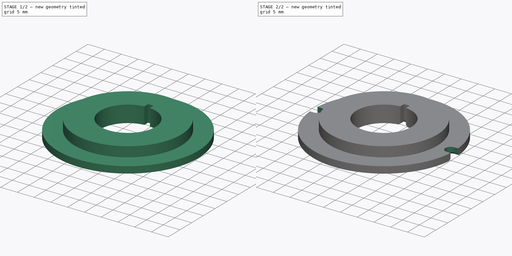
[diagram: build sequence overview — one tinted view per stage of 2, left to right]
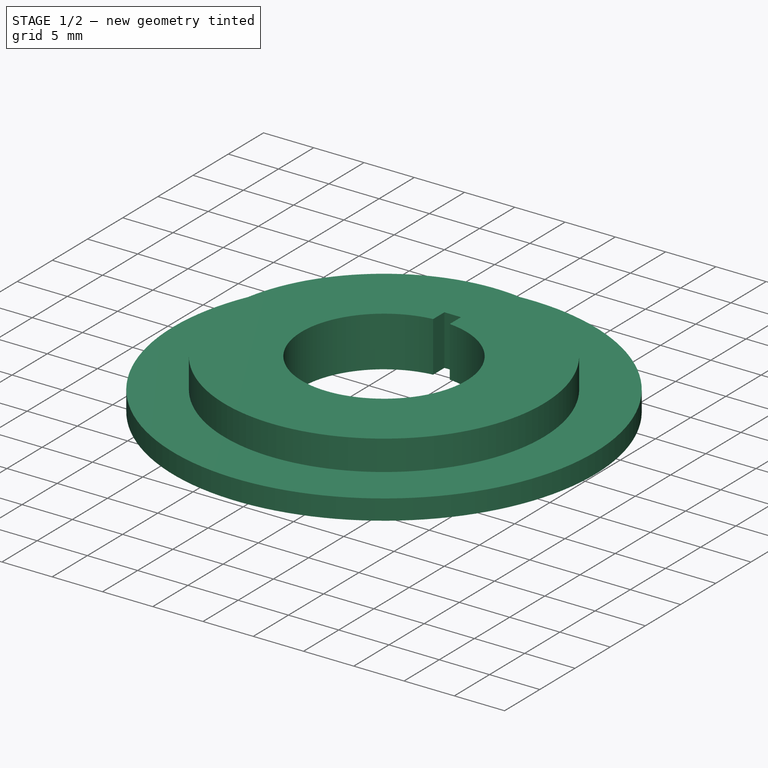
[diagram: stage 1 of 2 — iso view after this stage's code; geometry added in this stage tinted green]
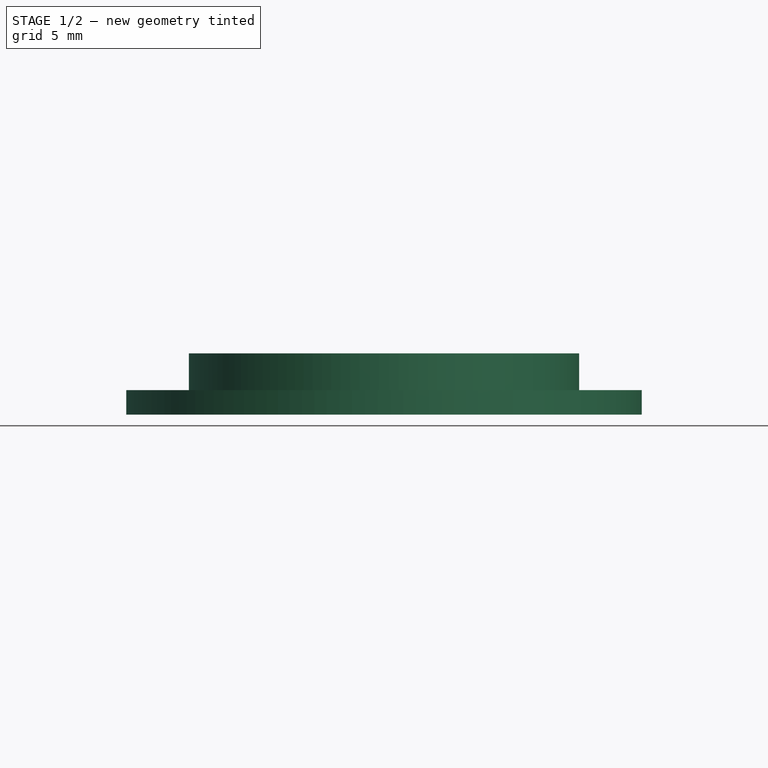
[diagram: stage 1 of 2 — front view after this stage's code; geometry added in this stage tinted green]
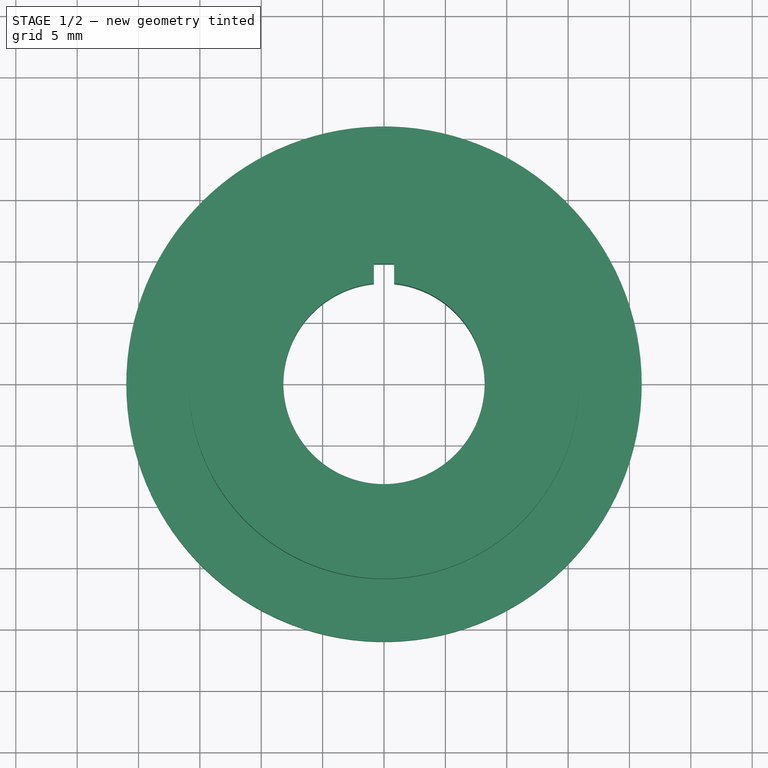
[diagram: stage 1 of 2 — top view after this stage's code; geometry added in this stage tinted green]
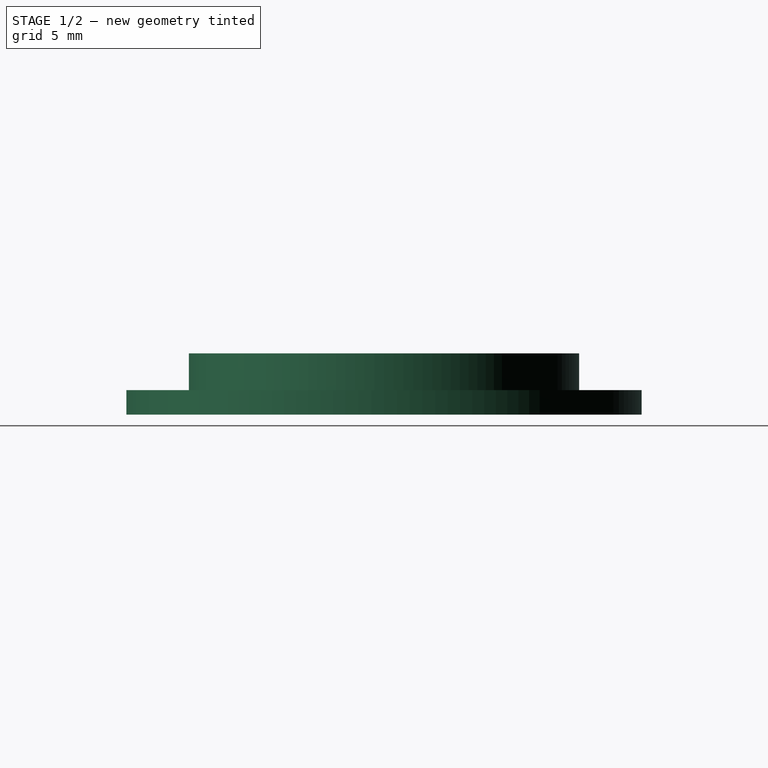
[diagram: stage 1 of 2 — right view after this stage's code; geometry added in this stage tinted green]
FCSTD DOCUMENT  (FreeCAD 0.15R4671 (Git))
Label: Adapter Not-Aus
License: All rights reserved
LicenseURL: http://en.wikipedia.org/wiki/All_rights_reserved
objects: Sketcher::SketchObject×3, PartDesign::Pad×2, PartDesign::Pocket×1, PartDesign::Chamfer×1
note: 10 computed .brp shape members not serialized (recipe doc carries the construction recipe); baked Part::Feature solids carry a one-line shape summary decoded from their .brp

FEATURE [Sketcher::SketchObject] Sketch
  sketch-geometry (5):
    g0: Circle CenterX=0 CenterY=0 CenterZ=0 NormalX=0 NormalY=0 NormalZ=1 Radius=15.9
    g1: LineSegment StartX=0.825 StartY=8.15839 StartZ=0 EndX=0.825 EndY=9.75839 EndZ=0
    g2: LineSegment StartX=0.825 StartY=9.75839 StartZ=0 EndX=-0.825 EndY=9.75839 EndZ=0
    g3: LineSegment StartX=-0.825 StartY=9.75839 StartZ=0 EndX=-0.825 EndY=8.15839 EndZ=0
    g4: ArcOfCircle CenterX=0 CenterY=0 CenterZ=0 NormalX=0 NormalY=0 NormalZ=1 Radius=8.2 StartAngle=1.67158 EndAngle=7.7532
  constraints (13):
    c: Coincident(g1,g2)
    c: Coincident(g2,g3)
    c: Horizontal(g2)
    c: Vertical(g1)
    c: Vertical(g3)
    c: Coincident(g4,g-1)
    c: Symmetric(g2,g1,g-2)
    c: Coincident(g3,g4)
    c: Coincident(g1,g4)
    c: DistanceX(g2) = -1.65
    c: DistanceY(g1) = 1.6
    c: Radius(g4) = 8.2
    c: Radius(g0) = 15.9
FEATURE [PartDesign::Pad] Pad
  Length = 5
  Length2 = 100
  Sketch = -> Sketch
  Type = 0
FEATURE [Sketcher::SketchObject] Sketch001
  ExternalGeometry = -> [Pad]
  Placement = pos=(0,0,0) rot=(1,0,0;3.14159rad)
  Support = -> Pad [Face6]
  sketch-geometry (2):
    g0: Circle CenterX=0 CenterY=0 CenterZ=0 NormalX=0 NormalY=0 NormalZ=1 Radius=15.9
    g1: Circle CenterX=0 CenterY=0 CenterZ=0 NormalX=0 NormalY=0 NormalZ=1 Radius=21
  constraints (4):
    c: Equal(g0,g-3)
    c: Coincident(g0,g-1)
    c: Coincident(g1,g-1)
    c: Radius(g1) = 21
FEATURE [PartDesign::Pad] Pad001
  Length = 2
  Length2 = 100
  Reversed = true
  Sketch = -> Sketch001
  Type = 0
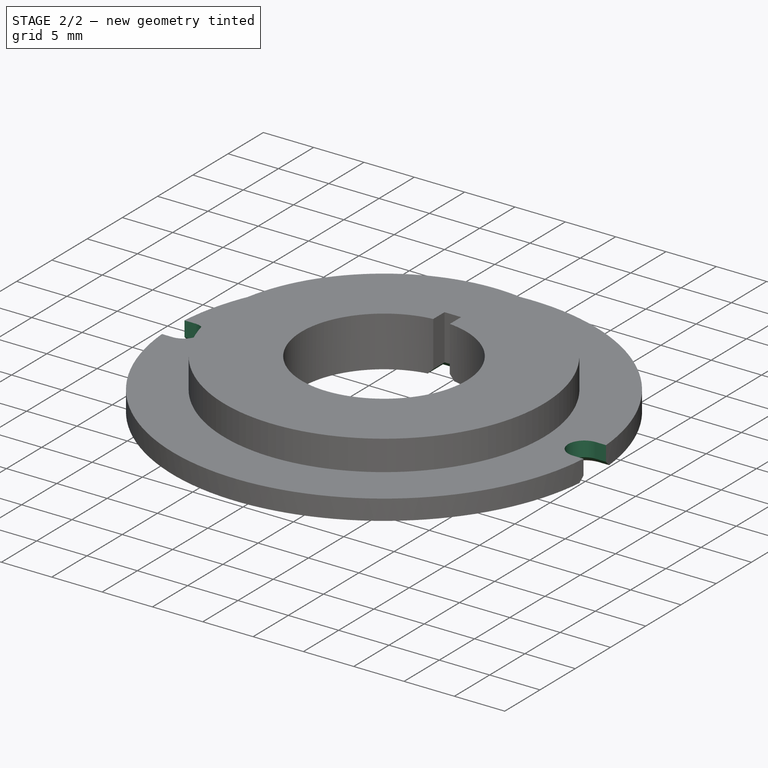
[diagram: stage 2 of 2 — iso view after this stage's code; geometry added in this stage tinted green]
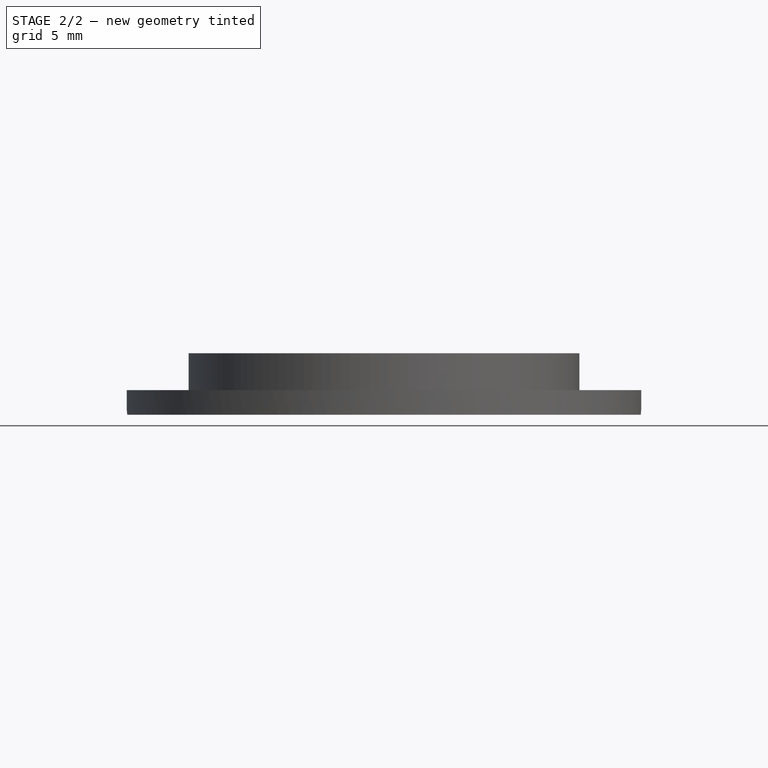
[diagram: stage 2 of 2 — front view after this stage's code; geometry added in this stage tinted green]
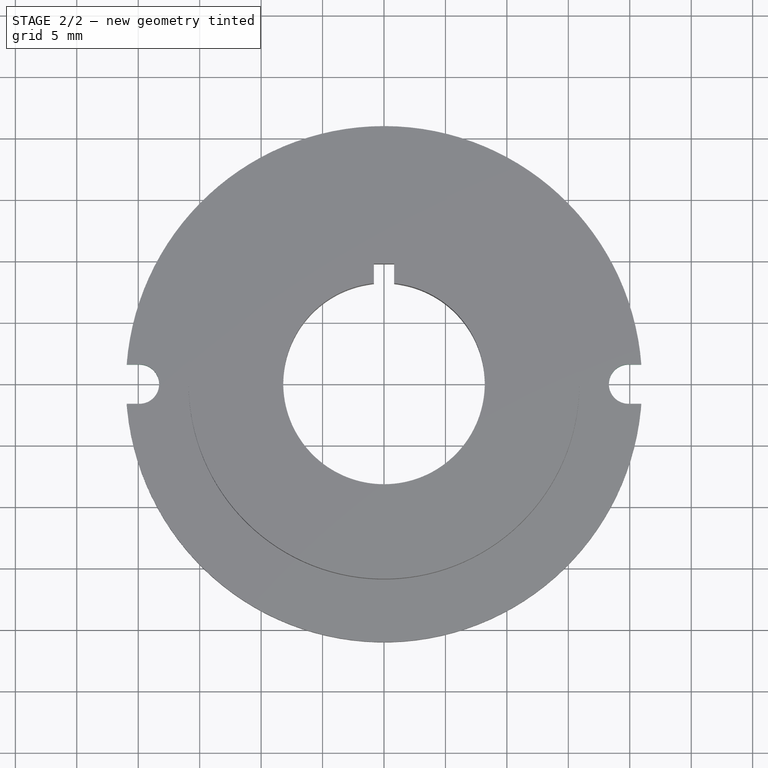
[diagram: stage 2 of 2 — top view after this stage's code; geometry added in this stage tinted green]
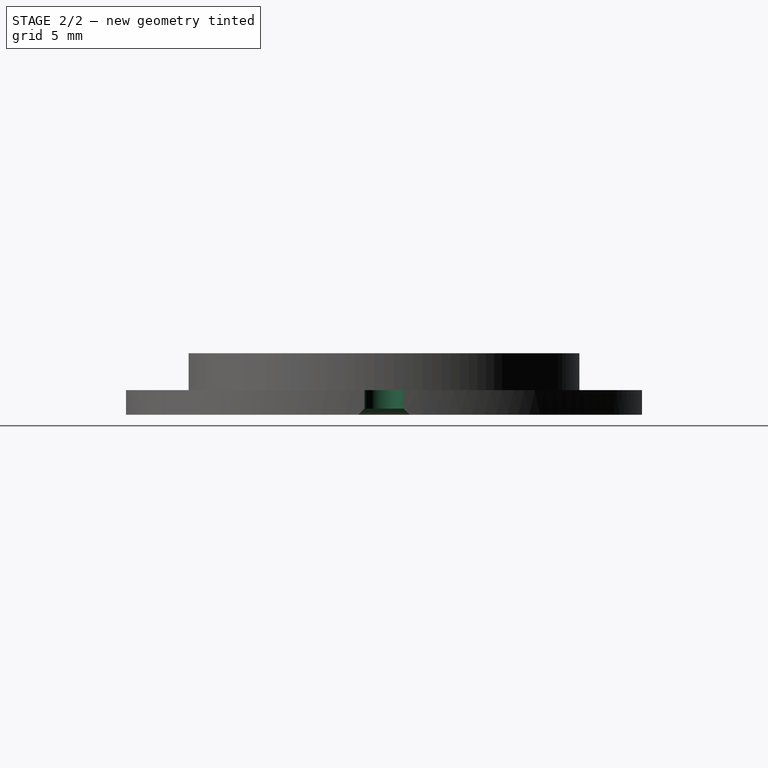
[diagram: stage 2 of 2 — right view after this stage's code; geometry added in this stage tinted green]
FEATURE [Sketcher::SketchObject] Sketch002
  ExternalGeometry = -> [Pad001]
  Placement = pos=(0,0,2) rot=(0,0,1;0rad)
  Support = -> Pad001 [Face10]
  sketch-geometry (9):
    g0: ArcOfCircle CenterX=-19.9 CenterY=0 CenterZ=0 NormalX=0 NormalY=0 NormalZ=1 Radius=1.6 StartAngle=4.71239 EndAngle=7.85398
    g1: LineSegment StartX=-21.9 StartY=-1.6 StartZ=0 EndX=-19.9 EndY=-1.6 EndZ=0
    g2: LineSegment StartX=-21.9 StartY=1.6 StartZ=0 EndX=-19.9 EndY=1.6 EndZ=0
    g3: LineSegment StartX=-21.9 StartY=1.6 StartZ=0 EndX=-21.9 EndY=-1.6 EndZ=0
    g4: ArcOfCircle CenterX=19.9 CenterY=0 CenterZ=0 NormalX=0 NormalY=0 NormalZ=1 Radius=1.6 StartAngle=1.5708 EndAngle=4.71239
    g5: LineSegment StartX=19.9 StartY=-1.6 StartZ=0 EndX=21.9 EndY=-1.6 EndZ=0
    g6: LineSegment StartX=19.9 StartY=1.6 StartZ=0 EndX=21.9 EndY=1.6 EndZ=0
    g7: LineSegment StartX=21.9 StartY=1.6 StartZ=0 EndX=21.9 EndY=-1.6 EndZ=0
    g8: LineSegment [constr] StartX=-15.9 StartY=1.6 StartZ=0 EndX=-15.9 EndY=-1.6 EndZ=0
  constraints (25):
    c: Tangent(g1,g0) = -1.5708
    c: Tangent(g2,g0) = 1.5708
    c: Horizontal(g1)
    c: Coincident(g3,g2)
    c: Coincident(g3,g1)
    c: Vertical(g3)
    c: Symmetric(g1,g2,g-1)
    c: Radius(g0) = 1.6
    c: Horizontal(g2)
    c: DistanceX(g1) = 2
    c: Tangent(g4,g6) = 1.5708
    c: Tangent(g4,g5) = -1.5708
    c: Horizontal(g5)
    c: Horizontal(g6)
    c: Equal(g5,g1)
    c: Coincident(g7,g6)
    c: Coincident(g7,g5)
    c: Vertical(g7)
    c: PointOnObject(g4,g-1)
    c: Equal(g3,g7)
    c: Symmetric(g4,g0,g-2)
    c: Symmetric(g8,g8,g-1)
    c: PointOnObject(g8,g2)
    c: Tangent(g8,g-3)
    c: DistanceX(g8,g0) = -4
FEATURE [PartDesign::Pocket] Pocket
  Length = 5
  Sketch = -> Sketch002
  Type = 0
FEATURE [PartDesign::Chamfer] Chamfer
  Base = -> Pocket [Edge3,Edge9,Edge12,Edge17,Edge21]
  Size = 0.5
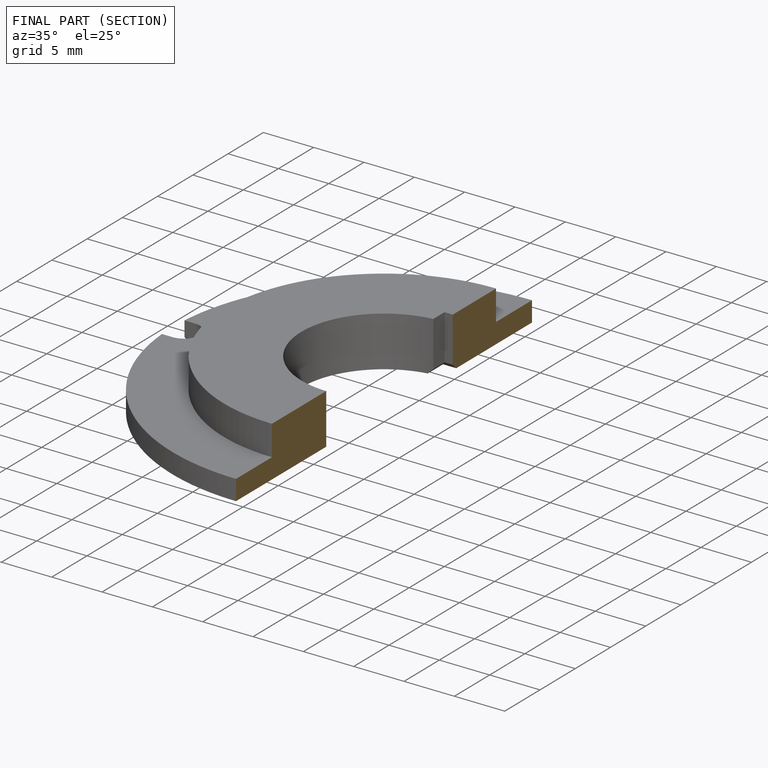
[diagram: finished part — half-section view (interior)]
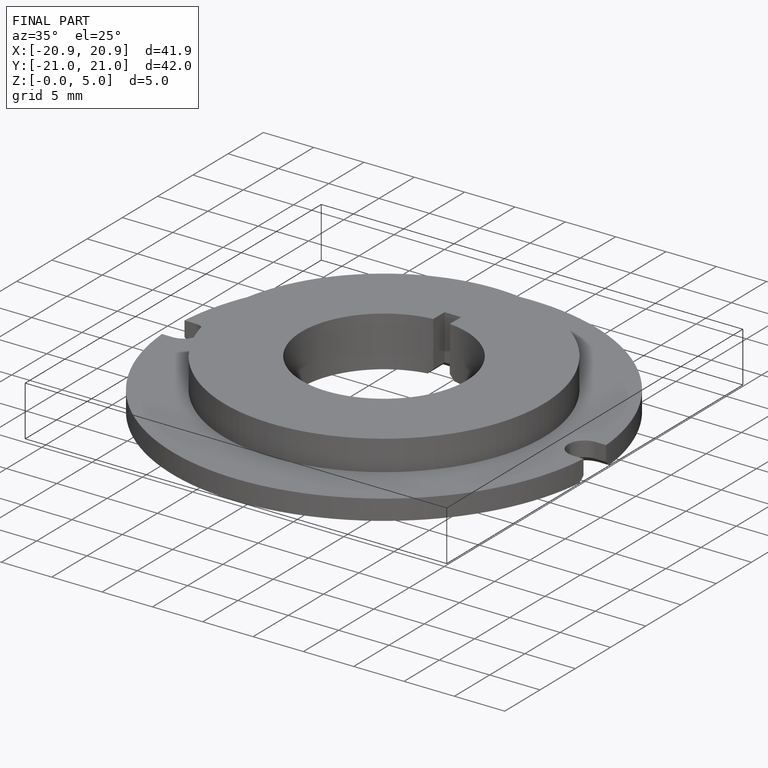
[diagram: finished part — iso view with bounding-box wireframe]
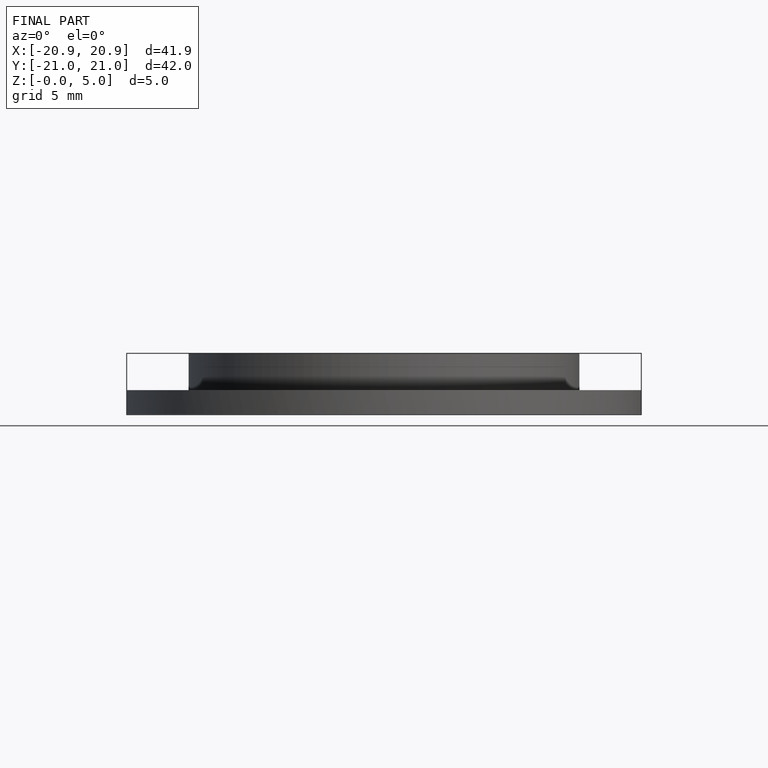
[diagram: finished part — front view with bounding-box wireframe]
